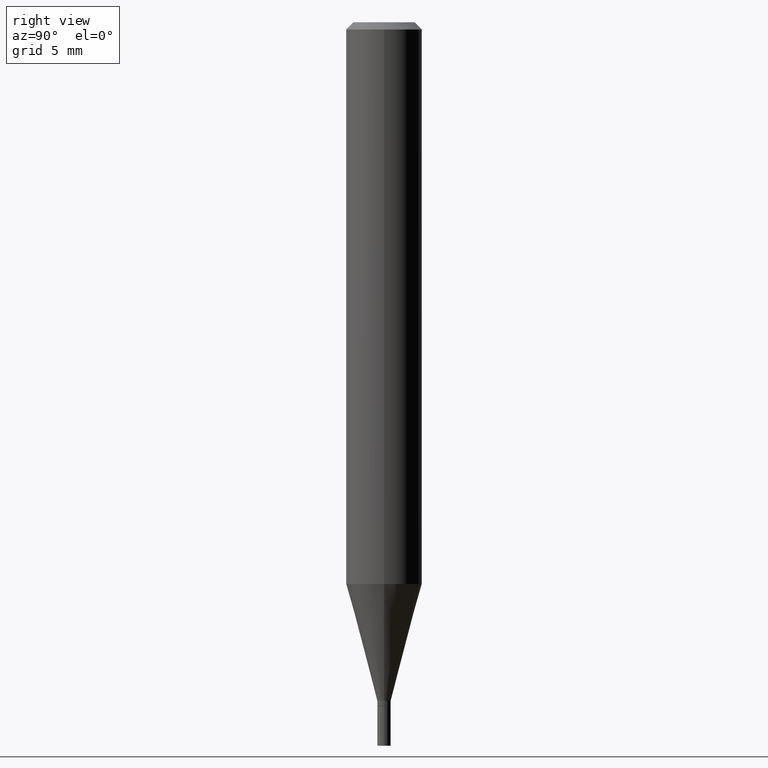
[diagram: clean part render]
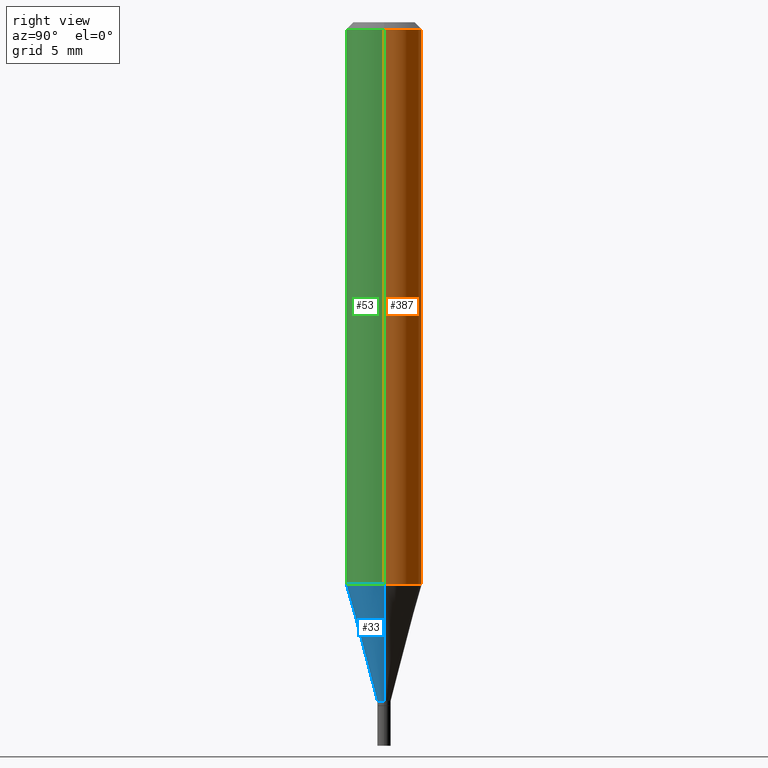
[diagram: same view with three faces highlighted in distinct colors, each labeled with its STEP entity id]
A machine part, right view with three faces highlighted in distinct colors.
Their STEP definitions:

[orange] entity #387 — the highlighted cylindrical surface (partial cylindrical patch) has radius 2.0002 mm, axis along (-0, 0, 1).
#5 = LINE ( 'NONE', #54, #304 ) ;
#6 = DIRECTION ( 'NONE',  ( 1.000000000000000000, -6.982962677686265922E-15, 4.876176775795935232E-29 ) ) ;
#43 = VERTEX_POINT ( 'NONE', #399 ) ;
#54 = CARTESIAN_POINT ( 'NONE',  ( 0.07875000000000000056, -5.499083108677934443E-16, 3.839989210939299016E-30 ) ) ;
#67 = AXIS2_PLACEMENT_3D ( 'NONE', #143, #186, #349 ) ;
#68 = LINE ( 'NONE', #215, #384 ) ;
#75 = VERTEX_POINT ( 'NONE', #137 ) ;
#88 = CARTESIAN_POINT ( 'NONE',  ( -0.07875000000000000056, -1.499729050267316354E-15, -0.01499999999999999944 ) ) ;
#92 = EDGE_CURVE ( 'NONE', #75, #132, #68, .T. ) ;
#114 = EDGE_CURVE ( 'NONE', #183, #75, #297, .T. ) ;
#130 = EDGE_CURVE ( 'NONE', #43, #132, #147, .T. ) ;
#132 = VERTEX_POINT ( 'NONE', #88 ) ;
#137 = CARTESIAN_POINT ( 'NONE',  ( -0.07875000000000000056, -3.506638284863064036E-15, -1.164603300048402845 ) ) ;
#143 = CARTESIAN_POINT ( 'NONE',  ( 2.848001041848637947E-29, -4.066190689274142838E-15, -1.164603300048402845 ) ) ;
#147 = CIRCLE ( 'NONE', #371, 0.07875000000000000056 ) ;
#155 = DIRECTION ( 'NONE',  ( -2.445468806185136597E-29, 3.491481338843145583E-15, 1.000000000000000000 ) ) ;
#156 = DIRECTION ( 'NONE',  ( -2.445468806185136877E-29, 3.491481338843145188E-15, 1.000000000000000000 ) ) ;
#161 = EDGE_LOOP ( 'NONE', ( #342, #421, #311, #282 ) ) ;
#174 = CARTESIAN_POINT ( 'NONE',  ( 0.07875000000000000056, -4.616099000141935394E-15, -1.164603300048402845 ) ) ;
#183 = VERTEX_POINT ( 'NONE', #174 ) ;
#186 = DIRECTION ( 'NONE',  ( -2.445468806185136597E-29, 3.491481338843145583E-15, 1.000000000000000000 ) ) ;
#191 = CARTESIAN_POINT ( 'NONE',  ( 0.000000000000000000, 0.000000000000000000, 0.000000000000000000 ) ) ;
#215 = CARTESIAN_POINT ( 'NONE',  ( -0.07875000000000000056, 5.595524044110789003E-16, -3.873661383575737792E-30 ) ) ;
#228 = DIRECTION ( 'NONE',  ( -2.445468806185136877E-29, 3.491481338843145188E-15, 1.000000000000000000 ) ) ;
#242 = FACE_OUTER_BOUND ( 'NONE', #161, .T. ) ;
#254 = CARTESIAN_POINT ( 'NONE',  ( 3.668203209277705088E-31, -5.237222008264718399E-17, -0.01499999999999999944 ) ) ;
#274 = CYLINDRICAL_SURFACE ( 'NONE', #380, 0.07875000000000000056 ) ;
#282 = ORIENTED_EDGE ( 'NONE', *, *, #294, .F. ) ;
#294 = EDGE_CURVE ( 'NONE', #183, #43, #5, .T. ) ;
#297 = CIRCLE ( 'NONE', #67, 0.07875000000000000056 ) ;
#304 = VECTOR ( 'NONE', #228, 39.37007874015748143 ) ;
#311 = ORIENTED_EDGE ( 'NONE', *, *, #130, .F. ) ;
#318 = DIRECTION ( 'NONE',  ( 1.000000000000000000, -6.982962677686265922E-15, 0.000000000000000000 ) ) ;
#342 = ORIENTED_EDGE ( 'NONE', *, *, #114, .T. ) ;
#349 = DIRECTION ( 'NONE',  ( 1.000000000000000000, -6.982962677686268288E-15, 0.000000000000000000 ) ) ;
#371 = AXIS2_PLACEMENT_3D ( 'NONE', #254, #383, #318 ) ;
#380 = AXIS2_PLACEMENT_3D ( 'NONE', #191, #155, #6 ) ;
#383 = DIRECTION ( 'NONE',  ( -2.445468806185136597E-29, 3.491481338843145583E-15, 1.000000000000000000 ) ) ;
#384 = VECTOR ( 'NONE', #156, 39.37007874015748143 ) ;
#387 = ADVANCED_FACE ( 'NONE', ( #242 ), #274, .T. ) ;
#399 = CARTESIAN_POINT ( 'NONE',  ( 0.07875000000000000056, -6.022805309504406221E-16, -0.01499999999999999944 ) ) ;
#421 = ORIENTED_EDGE ( 'NONE', *, *, #92, .T. ) ;

[blue] entity #33 — the highlighted conical surface has half-angle 15 deg.
#1 = CONICAL_SURFACE ( 'NONE', #346, 0.01380000000000019232, 0.2617993877991500740 ) ;
#3 = DIRECTION ( 'NONE',  ( 0.2588190451025213501, 1.565188264969621968E-15, 0.9659258262890682012 ) ) ;
#24 = AXIS2_PLACEMENT_3D ( 'NONE', #187, #118, #425 ) ;
#26 = EDGE_LOOP ( 'NONE', ( #258, #151, #180, #456 ) ) ;
#32 = DIRECTION ( 'NONE',  ( -2.445468806185136597E-29, 3.491481338843145583E-15, 1.000000000000000000 ) ) ;
#33 = ADVANCED_FACE ( 'NONE', ( #287 ), #1, .T. ) ;
#40 = CARTESIAN_POINT ( 'NONE',  ( -0.01380000000000019232, -4.160548815540236745E-15, -1.407000000000000028 ) ) ;
#51 = VECTOR ( 'NONE', #3, 39.37007874015747433 ) ;
#59 = DIRECTION ( 'NONE',  ( -2.445468806185136597E-29, 3.491481338843145583E-15, 1.000000000000000000 ) ) ;
#61 = AXIS2_PLACEMENT_3D ( 'NONE', #296, #32, #234 ) ;
#70 = EDGE_CURVE ( 'NONE', #179, #183, #330, .T. ) ;
#75 = VERTEX_POINT ( 'NONE', #137 ) ;
#109 = CARTESIAN_POINT ( 'NONE',  ( -0.01380000000000019232, -4.814459346217411032E-15, -1.407000000000000028 ) ) ;
#118 = DIRECTION ( 'NONE',  ( -2.445468806185136597E-29, 3.491481338843145583E-15, 1.000000000000000000 ) ) ;
#137 = CARTESIAN_POINT ( 'NONE',  ( -0.07875000000000000056, -3.506638284863064036E-15, -1.164603300048402845 ) ) ;
#142 = CIRCLE ( 'NONE', #61, 0.07875000000000000056 ) ;
#151 = ORIENTED_EDGE ( 'NONE', *, *, #447, .T. ) ;
#174 = CARTESIAN_POINT ( 'NONE',  ( 0.07875000000000000056, -4.616099000141935394E-15, -1.164603300048402845 ) ) ;
#179 = VERTEX_POINT ( 'NONE', #437 ) ;
#180 = ORIENTED_EDGE ( 'NONE', *, *, #70, .T. ) ;
#183 = VERTEX_POINT ( 'NONE', #174 ) ;
#187 = CARTESIAN_POINT ( 'NONE',  ( 3.440774610302487541E-29, -4.912514243752305891E-15, -1.407000000000000028 ) ) ;
#192 = VECTOR ( 'NONE', #382, 39.37007874015747433 ) ;
#199 = DIRECTION ( 'NONE',  ( 1.000000000000000000, -6.982962677686277755E-15, 0.000000000000000000 ) ) ;
#234 = DIRECTION ( 'NONE',  ( 1.000000000000000000, -6.982962677686268288E-15, 0.000000000000000000 ) ) ;
#258 = ORIENTED_EDGE ( 'NONE', *, *, #277, .F. ) ;
#260 = CARTESIAN_POINT ( 'NONE',  ( 0.01380000000000019232, -5.008879128704377621E-15, -1.407000000000000028 ) ) ;
#277 = EDGE_CURVE ( 'NONE', #324, #75, #450, .T. ) ;
#287 = FACE_OUTER_BOUND ( 'NONE', #26, .T. ) ;
#296 = CARTESIAN_POINT ( 'NONE',  ( 2.848001041848637947E-29, -4.066190689274142838E-15, -1.164603300048402845 ) ) ;
#324 = VERTEX_POINT ( 'NONE', #40 ) ;
#330 = LINE ( 'NONE', #260, #51 ) ;
#344 = EDGE_CURVE ( 'NONE', #75, #183, #142, .T. ) ;
#346 = AXIS2_PLACEMENT_3D ( 'NONE', #389, #59, #199 ) ;
#356 = CIRCLE ( 'NONE', #24, 0.01380000000000019232 ) ;
#382 = DIRECTION ( 'NONE',  ( -0.2588190451025213501, 5.211531920934551042E-15, 0.9659258262890682012 ) ) ;
#389 = CARTESIAN_POINT ( 'NONE',  ( 3.440774610302487541E-29, -4.912514243752305891E-15, -1.407000000000000028 ) ) ;
#425 = DIRECTION ( 'NONE',  ( 1.000000000000000000, -6.982962677686277755E-15, 0.000000000000000000 ) ) ;
#437 = CARTESIAN_POINT ( 'NONE',  ( 0.01380000000000019232, -5.008879128704377621E-15, -1.407000000000000028 ) ) ;
#447 = EDGE_CURVE ( 'NONE', #324, #179, #356, .T. ) ;
#450 = LINE ( 'NONE', #109, #192 ) ;
#456 = ORIENTED_EDGE ( 'NONE', *, *, #344, .F. ) ;

[green] entity #53 — the highlighted cylindrical surface (partial cylindrical patch) has radius 2.0002 mm, axis along (-0, 0, 1).
#5 = LINE ( 'NONE', #54, #304 ) ;
#32 = DIRECTION ( 'NONE',  ( -2.445468806185136597E-29, 3.491481338843145583E-15, 1.000000000000000000 ) ) ;
#43 = VERTEX_POINT ( 'NONE', #399 ) ;
#53 = ADVANCED_FACE ( 'NONE', ( #463 ), #166, .T. ) ;
#54 = CARTESIAN_POINT ( 'NONE',  ( 0.07875000000000000056, -5.499083108677934443E-16, 3.839989210939299016E-30 ) ) ;
#61 = AXIS2_PLACEMENT_3D ( 'NONE', #296, #32, #234 ) ;
#64 = ORIENTED_EDGE ( 'NONE', *, *, #344, .T. ) ;
#68 = LINE ( 'NONE', #215, #384 ) ;
#75 = VERTEX_POINT ( 'NONE', #137 ) ;
#88 = CARTESIAN_POINT ( 'NONE',  ( -0.07875000000000000056, -1.499729050267316354E-15, -0.01499999999999999944 ) ) ;
#89 = DIRECTION ( 'NONE',  ( 1.000000000000000000, -6.982962677686265922E-15, 4.876176775795935232E-29 ) ) ;
#92 = EDGE_CURVE ( 'NONE', #75, #132, #68, .T. ) ;
#97 = CIRCLE ( 'NONE', #436, 0.07875000000000000056 ) ;
#105 = AXIS2_PLACEMENT_3D ( 'NONE', #397, #266, #89 ) ;
#113 = ORIENTED_EDGE ( 'NONE', *, *, #396, .F. ) ;
#132 = VERTEX_POINT ( 'NONE', #88 ) ;
#137 = CARTESIAN_POINT ( 'NONE',  ( -0.07875000000000000056, -3.506638284863064036E-15, -1.164603300048402845 ) ) ;
#142 = CIRCLE ( 'NONE', #61, 0.07875000000000000056 ) ;
#156 = DIRECTION ( 'NONE',  ( -2.445468806185136877E-29, 3.491481338843145188E-15, 1.000000000000000000 ) ) ;
#166 = CYLINDRICAL_SURFACE ( 'NONE', #105, 0.07875000000000000056 ) ;
#169 = CARTESIAN_POINT ( 'NONE',  ( 3.668203209277705088E-31, -5.237222008264718399E-17, -0.01499999999999999944 ) ) ;
#173 = DIRECTION ( 'NONE',  ( -2.445468806185136597E-29, 3.491481338843145583E-15, 1.000000000000000000 ) ) ;
#174 = CARTESIAN_POINT ( 'NONE',  ( 0.07875000000000000056, -4.616099000141935394E-15, -1.164603300048402845 ) ) ;
#183 = VERTEX_POINT ( 'NONE', #174 ) ;
#205 = ORIENTED_EDGE ( 'NONE', *, *, #92, .F. ) ;
#215 = CARTESIAN_POINT ( 'NONE',  ( -0.07875000000000000056, 5.595524044110789003E-16, -3.873661383575737792E-30 ) ) ;
#228 = DIRECTION ( 'NONE',  ( -2.445468806185136877E-29, 3.491481338843145188E-15, 1.000000000000000000 ) ) ;
#234 = DIRECTION ( 'NONE',  ( 1.000000000000000000, -6.982962677686268288E-15, 0.000000000000000000 ) ) ;
#249 = DIRECTION ( 'NONE',  ( 1.000000000000000000, -6.982962677686265922E-15, 0.000000000000000000 ) ) ;
#266 = DIRECTION ( 'NONE',  ( -2.445468806185136597E-29, 3.491481338843145583E-15, 1.000000000000000000 ) ) ;
#294 = EDGE_CURVE ( 'NONE', #183, #43, #5, .T. ) ;
#296 = CARTESIAN_POINT ( 'NONE',  ( 2.848001041848637947E-29, -4.066190689274142838E-15, -1.164603300048402845 ) ) ;
#304 = VECTOR ( 'NONE', #228, 39.37007874015748143 ) ;
#341 = ORIENTED_EDGE ( 'NONE', *, *, #294, .T. ) ;
#344 = EDGE_CURVE ( 'NONE', #75, #183, #142, .T. ) ;
#384 = VECTOR ( 'NONE', #156, 39.37007874015748143 ) ;
#396 = EDGE_CURVE ( 'NONE', #132, #43, #97, .T. ) ;
#397 = CARTESIAN_POINT ( 'NONE',  ( 0.000000000000000000, 0.000000000000000000, 0.000000000000000000 ) ) ;
#399 = CARTESIAN_POINT ( 'NONE',  ( 0.07875000000000000056, -6.022805309504406221E-16, -0.01499999999999999944 ) ) ;
#436 = AXIS2_PLACEMENT_3D ( 'NONE', #169, #173, #249 ) ;
#454 = EDGE_LOOP ( 'NONE', ( #205, #64, #341, #113 ) ) ;
#463 = FACE_OUTER_BOUND ( 'NONE', #454, .T. ) ;